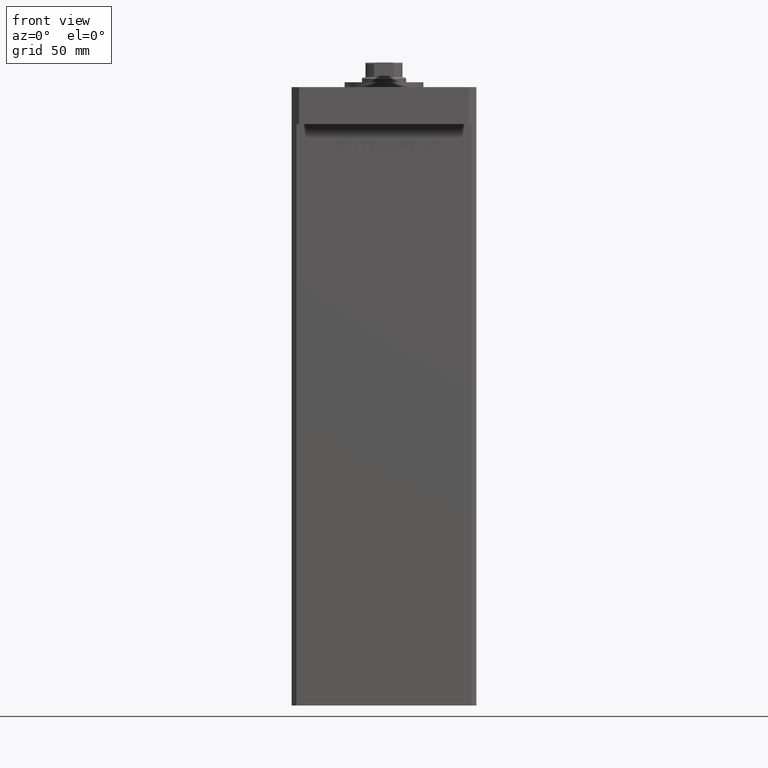
[diagram: clean part render]
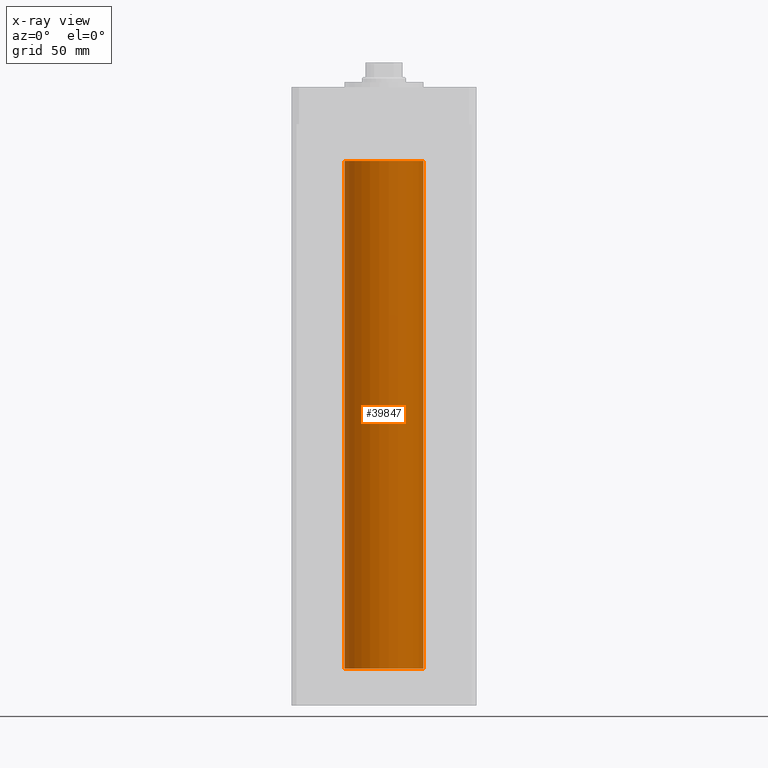
[diagram: x-ray — body ghosted, one internal face saturated and labeled with its STEP entity id]
A machine part, front view, then the same camera in x-ray: the body is ghosted and one INTERNAL B-rep face — a face not visible from any outside direction — is saturated and labeled: STEP entity #39847.
In plain terms, the highlighted cylindrical surface (partial cylindrical patch) has radius 16 mm, axis along (-0, -0, -1).
Its self-contained STEP definition (entity closure, byte-faithful):
#1015 = CARTESIAN_POINT ( 'NONE',  ( -16.00000000000000000, 0.000000000000000000, 0.000000000000000000 ) ) ;
#3529 = EDGE_LOOP ( 'NONE', ( #7819, #20906, #17513, #28253 ) ) ;
#3597 = LINE ( 'NONE', #24188, #49685 ) ;
#4654 = DIRECTION ( 'NONE',  ( -0.000000000000000000, -0.000000000000000000, -1.000000000000000000 ) ) ;
#5194 = EDGE_CURVE ( 'NONE', #7820, #45699, #33283, .T. ) ;
#5658 = CARTESIAN_POINT ( 'NONE',  ( -16.00000000000000000, 0.000000000000000000, 206.0000000000000000 ) ) ;
#6050 = EDGE_CURVE ( 'NONE', #7820, #23855, #3597, .T. ) ;
#7819 = ORIENTED_EDGE ( 'NONE', *, *, #5194, .T. ) ;
#7820 = VERTEX_POINT ( 'NONE', #5658 ) ;
#8304 = DIRECTION ( 'NONE',  ( -0.000000000000000000, -0.000000000000000000, -1.000000000000000000 ) ) ;
#9932 = AXIS2_PLACEMENT_3D ( 'NONE', #39755, #35416, #11298 ) ;
#10094 = FACE_OUTER_BOUND ( 'NONE', #3529, .T. ) ;
#11298 = DIRECTION ( 'NONE',  ( 1.000000000000000000, 0.000000000000000000, 0.000000000000000000 ) ) ;
#14157 = DIRECTION ( 'NONE',  ( -0.000000000000000000, -0.000000000000000000, -1.000000000000000000 ) ) ;
#15566 = CIRCLE ( 'NONE', #45844, 16.00000000000000000 ) ;
#17513 = ORIENTED_EDGE ( 'NONE', *, *, #31140, .F. ) ;
#19108 = CARTESIAN_POINT ( 'NONE',  ( 16.00000000000000000, 1.959434878635765131E-15, 0.000000000000000000 ) ) ;
#20906 = ORIENTED_EDGE ( 'NONE', *, *, #53467, .T. ) ;
#23855 = VERTEX_POINT ( 'NONE', #1015 ) ;
#24188 = CARTESIAN_POINT ( 'NONE',  ( -16.00000000000000000, 0.000000000000000000, 206.0000000000000000 ) ) ;
#24824 = CARTESIAN_POINT ( 'NONE',  ( 16.00000000000000000, 1.959434878635765131E-15, 206.0000000000000000 ) ) ;
#25416 = VERTEX_POINT ( 'NONE', #19108 ) ;
#27155 = DIRECTION ( 'NONE',  ( -1.000000000000000000, 0.000000000000000000, 0.000000000000000000 ) ) ;
#28081 = VECTOR ( 'NONE', #8304, 1000.000000000000000 ) ;
#28253 = ORIENTED_EDGE ( 'NONE', *, *, #6050, .F. ) ;
#28651 = AXIS2_PLACEMENT_3D ( 'NONE', #44221, #14157, #27155 ) ;
#30683 = DIRECTION ( 'NONE',  ( -0.000000000000000000, 0.000000000000000000, 1.000000000000000000 ) ) ;
#31140 = EDGE_CURVE ( 'NONE', #23855, #25416, #15566, .T. ) ;
#31747 = CYLINDRICAL_SURFACE ( 'NONE', #28651, 16.00000000000000000 ) ;
#33214 = LINE ( 'NONE', #24824, #28081 ) ;
#33283 = CIRCLE ( 'NONE', #9932, 16.00000000000000000 ) ;
#35416 = DIRECTION ( 'NONE',  ( -0.000000000000000000, 0.000000000000000000, 1.000000000000000000 ) ) ;
#38786 = CARTESIAN_POINT ( 'NONE',  ( 16.00000000000000000, 1.959434878635765131E-15, 206.0000000000000000 ) ) ;
#39755 = CARTESIAN_POINT ( 'NONE',  ( 0.000000000000000000, 0.000000000000000000, 206.0000000000000000 ) ) ;
#39847 = ADVANCED_FACE ( 'NONE', ( #10094 ), #31747, .F. ) ;
#42624 = CARTESIAN_POINT ( 'NONE',  ( 0.000000000000000000, 0.000000000000000000, 0.000000000000000000 ) ) ;
#44221 = CARTESIAN_POINT ( 'NONE',  ( 0.000000000000000000, 0.000000000000000000, 206.0000000000000000 ) ) ;
#45699 = VERTEX_POINT ( 'NONE', #38786 ) ;
#45844 = AXIS2_PLACEMENT_3D ( 'NONE', #42624, #30683, #46697 ) ;
#46697 = DIRECTION ( 'NONE',  ( 1.000000000000000000, 0.000000000000000000, 0.000000000000000000 ) ) ;
#49685 = VECTOR ( 'NONE', #4654, 1000.000000000000000 ) ;
#53467 = EDGE_CURVE ( 'NONE', #45699, #25416, #33214, .T. ) ;